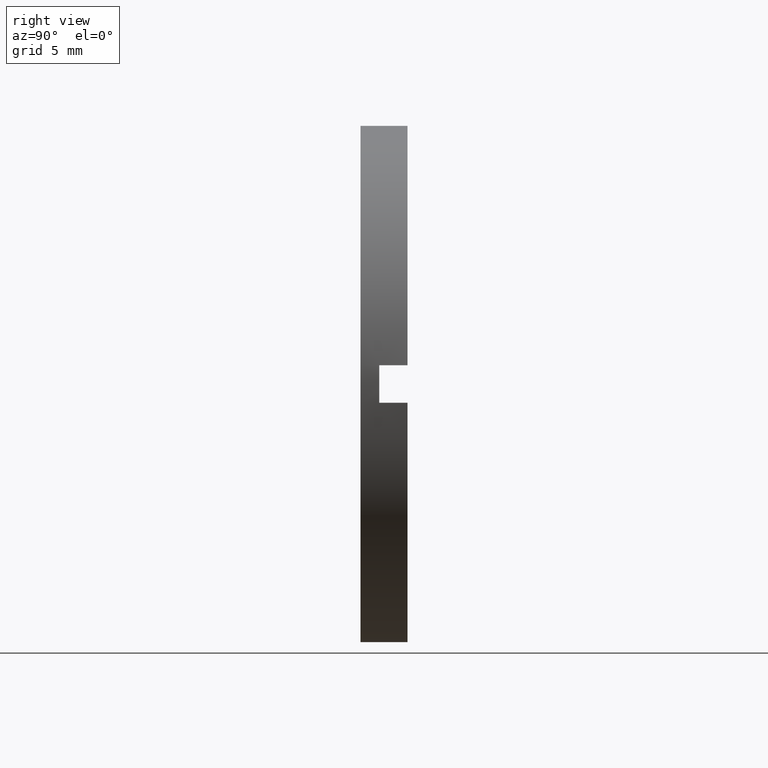
[diagram: clean part render]
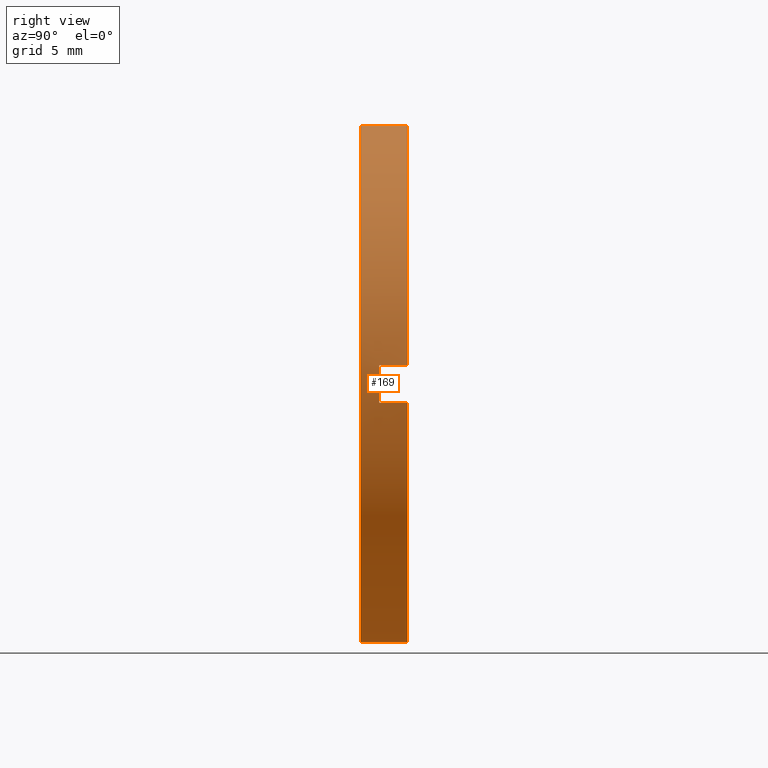
[diagram: same view with one face highlighted and labeled with its STEP entity id]
A machine part, right view. The second image highlights one B-rep face of the part: STEP entity #169.
In plain terms, the highlighted cylindrical surface (partial cylindrical patch) has radius 13.75 mm, axis along (-0, 1, -0).
Its self-contained STEP definition (entity closure, byte-faithful):
#6 = ORIENTED_EDGE ( 'NONE', *, *, #388, .T. ) ;
#32 = CIRCLE ( 'NONE', #92, 13.75000000000000700 ) ;
#39 = VERTEX_POINT ( 'NONE', #131 ) ;
#41 = CARTESIAN_POINT ( 'NONE',  ( 0.0000000000000000000, -4.464249787179428900, 0.0000000000000000000 ) ) ;
#48 = CARTESIAN_POINT ( 'NONE',  ( 1.683889348827611600E-015, -4.464249787179428900, -13.75000000000000700 ) ) ;
#66 = CARTESIAN_POINT ( 'NONE',  ( 0.0000000000000000000, 56.26084262701361600, 0.0000000000000000000 ) ) ;
#70 = FACE_OUTER_BOUND ( 'NONE', #400, .T. ) ;
#73 = CARTESIAN_POINT ( 'NONE',  ( 0.0000000000000000000, -1.964249787179434000, 13.75000000000000700 ) ) ;
#79 = CARTESIAN_POINT ( 'NONE',  ( 13.71358815190248500, 56.26084262701361600, -1.000000000000000000 ) ) ;
#88 = VECTOR ( 'NONE', #304, 1000.000000000000000 ) ;
#92 = AXIS2_PLACEMENT_3D ( 'NONE', #41, #324, #322 ) ;
#109 = CYLINDRICAL_SURFACE ( 'NONE', #377, 13.75000000000000700 ) ;
#125 = CARTESIAN_POINT ( 'NONE',  ( 0.0000000000000000000, -1.964249787179434000, 0.0000000000000000000 ) ) ;
#128 = VERTEX_POINT ( 'NONE', #181 ) ;
#131 = CARTESIAN_POINT ( 'NONE',  ( 13.71358815190246900, -1.964249787179430900, -1.000000000000000000 ) ) ;
#152 = ORIENTED_EDGE ( 'NONE', *, *, #270, .T. ) ;
#155 = DIRECTION ( 'NONE',  ( -0.0000000000000000000, 1.000000000000000000, -0.0000000000000000000 ) ) ;
#159 = CARTESIAN_POINT ( 'NONE',  ( 0.0000000000000000000, -1.964249787179434000, 0.0000000000000000000 ) ) ;
#161 = CARTESIAN_POINT ( 'NONE',  ( 13.71358815190248300, -3.464249787179428400, -0.9999999999999995600 ) ) ;
#162 = EDGE_CURVE ( 'NONE', #215, #209, #506, .T. ) ;
#169 = ADVANCED_FACE ( 'NONE', ( #70 ), #109, .T. ) ;
#172 = VECTOR ( 'NONE', #155, 1000.000000000000000 ) ;
#179 = AXIS2_PLACEMENT_3D ( 'NONE', #125, #296, #330 ) ;
#181 = CARTESIAN_POINT ( 'NONE',  ( 13.71358815190246900, -1.964249787179430900, 1.000000000000000000 ) ) ;
#192 = EDGE_CURVE ( 'NONE', #408, #372, #298, .T. ) ;
#202 = DIRECTION ( 'NONE',  ( -0.0000000000000000000, 1.000000000000000000, -0.0000000000000000000 ) ) ;
#203 = CARTESIAN_POINT ( 'NONE',  ( 13.71358815190248300, -3.464249787179428400, 0.9999999999999995600 ) ) ;
#209 = VERTEX_POINT ( 'NONE', #73 ) ;
#214 = VERTEX_POINT ( 'NONE', #237 ) ;
#215 = VERTEX_POINT ( 'NONE', #353 ) ;
#222 = ORIENTED_EDGE ( 'NONE', *, *, #364, .T. ) ;
#230 = DIRECTION ( 'NONE',  ( -0.0000000000000000000, 1.000000000000000000, -0.0000000000000000000 ) ) ;
#233 = CARTESIAN_POINT ( 'NONE',  ( 0.0000000000000000000, -3.464249787179428400, 0.0000000000000000000 ) ) ;
#237 = CARTESIAN_POINT ( 'NONE',  ( 1.683889348827611600E-015, -1.964249787179434000, -13.75000000000000700 ) ) ;
#246 = DIRECTION ( 'NONE',  ( -0.0000000000000000000, 1.000000000000000000, -0.0000000000000000000 ) ) ;
#250 = DIRECTION ( 'NONE',  ( 0.0000000000000000000, -1.000000000000000000, 0.0000000000000000000 ) ) ;
#260 = ORIENTED_EDGE ( 'NONE', *, *, #162, .F. ) ;
#270 = EDGE_CURVE ( 'NONE', #215, #430, #32, .T. ) ;
#279 = ORIENTED_EDGE ( 'NONE', *, *, #192, .F. ) ;
#285 = LINE ( 'NONE', #359, #172 ) ;
#292 = VECTOR ( 'NONE', #246, 1000.000000000000000 ) ;
#296 = DIRECTION ( 'NONE',  ( -0.0000000000000000000, 1.000000000000000000, -0.0000000000000000000 ) ) ;
#298 = CIRCLE ( 'NONE', #352, 13.75000000000000700 ) ;
#304 = DIRECTION ( 'NONE',  ( -0.0000000000000000000, 1.000000000000000000, -0.0000000000000000000 ) ) ;
#322 = DIRECTION ( 'NONE',  ( 0.0000000000000000000, 0.0000000000000000000, 1.000000000000000000 ) ) ;
#324 = DIRECTION ( 'NONE',  ( -0.0000000000000000000, 1.000000000000000000, -0.0000000000000000000 ) ) ;
#330 = DIRECTION ( 'NONE',  ( 0.0000000000000000000, 0.0000000000000000000, 1.000000000000000000 ) ) ;
#331 = VECTOR ( 'NONE', #250, 1000.000000000000000 ) ;
#340 = DIRECTION ( 'NONE',  ( 0.0000000000000000000, 0.0000000000000000000, 1.000000000000000000 ) ) ;
#344 = CARTESIAN_POINT ( 'NONE',  ( 0.0000000000000000000, 56.26084262701361600, 13.75000000000000700 ) ) ;
#352 = AXIS2_PLACEMENT_3D ( 'NONE', #233, #463, #503 ) ;
#353 = CARTESIAN_POINT ( 'NONE',  ( 0.0000000000000000000, -4.464249787179428900, 13.75000000000000700 ) ) ;
#359 = CARTESIAN_POINT ( 'NONE',  ( 13.71358815190248500, 56.26084262701361600, 1.000000000000000000 ) ) ;
#364 = EDGE_CURVE ( 'NONE', #39, #372, #497, .T. ) ;
#372 = VERTEX_POINT ( 'NONE', #161 ) ;
#377 = AXIS2_PLACEMENT_3D ( 'NONE', #66, #230, #340 ) ;
#388 = EDGE_CURVE ( 'NONE', #408, #128, #285, .T. ) ;
#394 = ORIENTED_EDGE ( 'NONE', *, *, #421, .F. ) ;
#400 = EDGE_LOOP ( 'NONE', ( #152, #482, #459, #222, #279, #6, #394, #260 ) ) ;
#407 = AXIS2_PLACEMENT_3D ( 'NONE', #159, #202, #475 ) ;
#408 = VERTEX_POINT ( 'NONE', #203 ) ;
#412 = CIRCLE ( 'NONE', #179, 13.75000000000000700 ) ;
#421 = EDGE_CURVE ( 'NONE', #209, #128, #471, .T. ) ;
#429 = LINE ( 'NONE', #435, #292 ) ;
#430 = VERTEX_POINT ( 'NONE', #48 ) ;
#435 = CARTESIAN_POINT ( 'NONE',  ( 1.683889348827611600E-015, 56.26084262701361600, -13.75000000000000700 ) ) ;
#445 = EDGE_CURVE ( 'NONE', #430, #214, #429, .T. ) ;
#459 = ORIENTED_EDGE ( 'NONE', *, *, #483, .F. ) ;
#463 = DIRECTION ( 'NONE',  ( 0.0000000000000000000, 1.000000000000000000, 0.0000000000000000000 ) ) ;
#471 = CIRCLE ( 'NONE', #407, 13.75000000000000700 ) ;
#475 = DIRECTION ( 'NONE',  ( 0.0000000000000000000, 0.0000000000000000000, 1.000000000000000000 ) ) ;
#482 = ORIENTED_EDGE ( 'NONE', *, *, #445, .T. ) ;
#483 = EDGE_CURVE ( 'NONE', #39, #214, #412, .T. ) ;
#497 = LINE ( 'NONE', #79, #331 ) ;
#503 = DIRECTION ( 'NONE',  ( 0.0000000000000000000, 0.0000000000000000000, 1.000000000000000000 ) ) ;
#506 = LINE ( 'NONE', #344, #88 ) ;